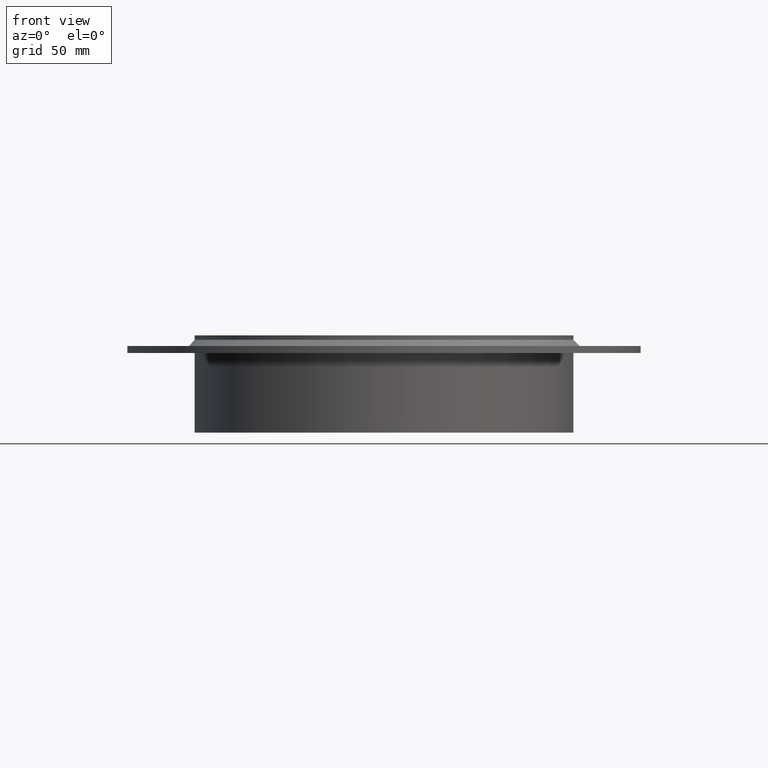
[diagram: clean part render]
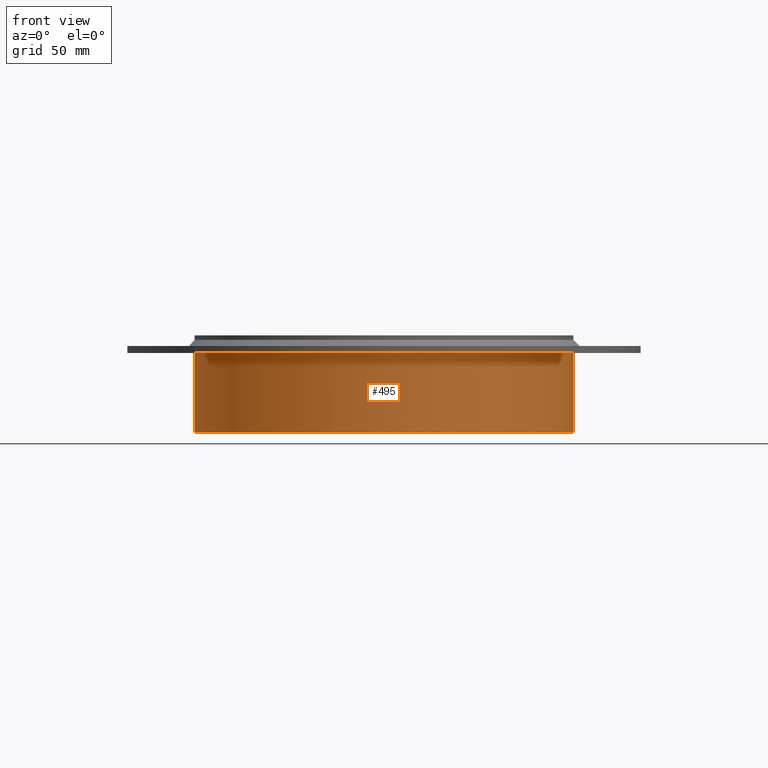
[diagram: same view with one face highlighted and labeled with its STEP entity id]
A machine part, front view. The second image highlights one B-rep face of the part: STEP entity #495.
In plain terms, the highlighted cylindrical surface (bore or boss wall) has radius 107 mm, axis along (0, 0, -1).
Its self-contained STEP definition (entity closure, byte-faithful):
#424=CARTESIAN_POINT('',(107.00000000000001,1.310372E-014,-10.0));
#425=VERTEX_POINT('',#424);
#426=CARTESIAN_POINT('',(0.0,0.0,-10.000000000000004));
#427=DIRECTION('',(0.0,0.0,-1.0));
#428=DIRECTION('',(-1.0,0.0,0.0));
#429=AXIS2_PLACEMENT_3D('',#426,#427,#428);
#430=CIRCLE('',#429,107.00000000000001);
#431=EDGE_CURVE('',#425,#425,#430,.T.);
#476=CARTESIAN_POINT('',(0.0,0.0,0.0));
#477=DIRECTION('',(0.0,0.0,-1.0));
#478=DIRECTION('',(-1.0,0.0,0.0));
#479=AXIS2_PLACEMENT_3D('',#476,#477,#478);
#480=CYLINDRICAL_SURFACE('',#479,107.00000000000001);
#481=ORIENTED_EDGE('',*,*,#431,.T.);
#482=EDGE_LOOP('',(#481));
#483=FACE_OUTER_BOUND('',#482,.T.);
#484=CARTESIAN_POINT('',(107.00000000000001,1.310372E-014,-55.0));
#485=VERTEX_POINT('',#484);
#486=CARTESIAN_POINT('',(0.0,0.0,-55.0));
#487=DIRECTION('',(0.0,0.0,-1.0));
#488=DIRECTION('',(-1.0,0.0,0.0));
#489=AXIS2_PLACEMENT_3D('',#486,#487,#488);
#490=CIRCLE('',#489,107.00000000000001);
#491=EDGE_CURVE('',#485,#485,#490,.T.);
#492=ORIENTED_EDGE('',*,*,#491,.F.);
#493=EDGE_LOOP('',(#492));
#494=FACE_BOUND('',#493,.T.);
#495=ADVANCED_FACE('',(#483,#494),#480,.T.);